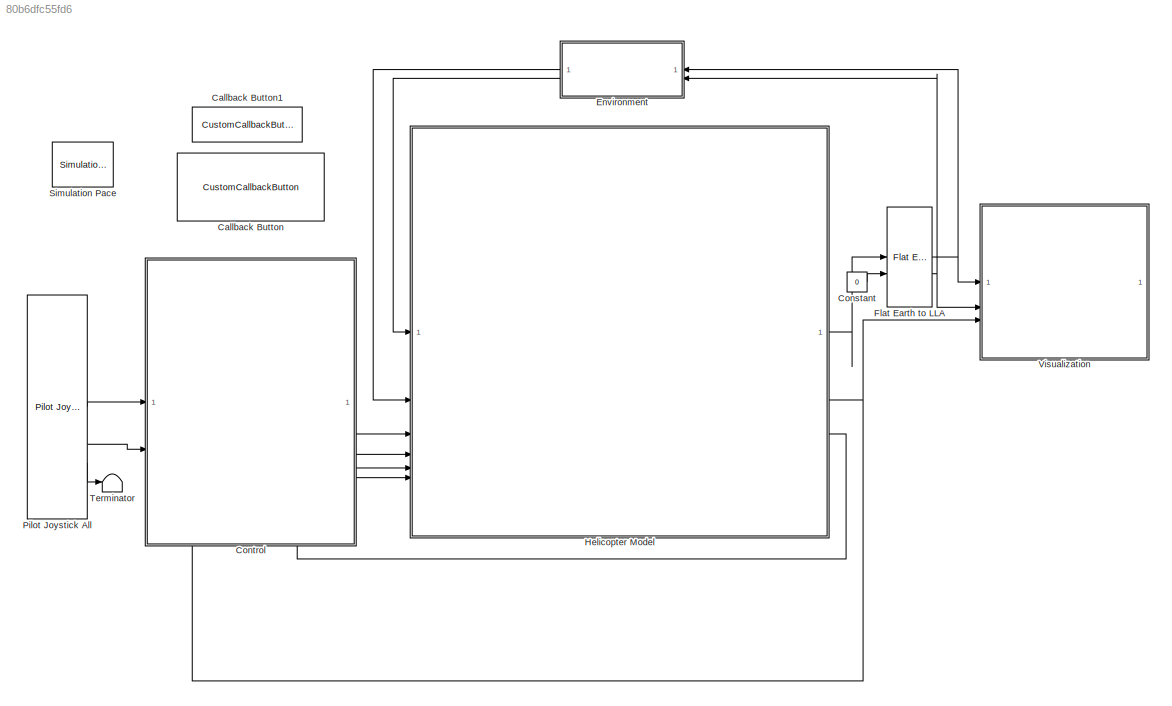
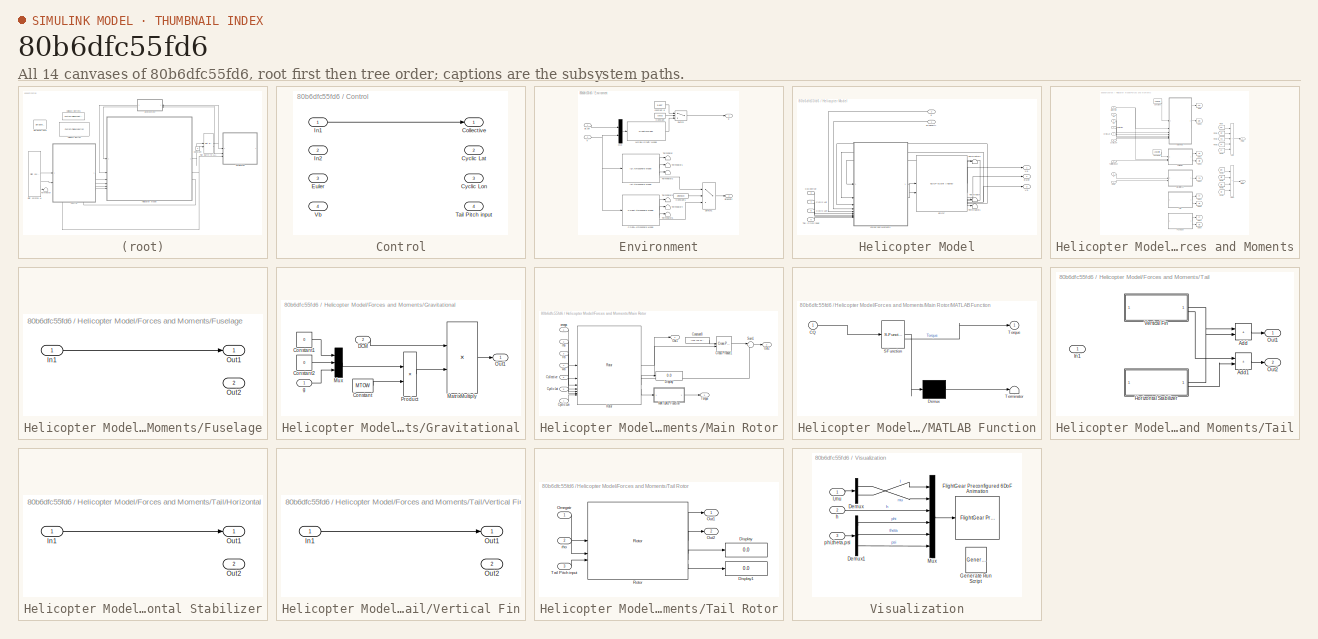
[diagram: thumbnail index - all 14 canvases of the model, root first then tree order]
MODEL slx_80b6dfc55fd6
KIND model
CONFIG AbsTol = auto
CONFIG EnableMultiTasking = off
CONFIG FixedStep = auto
CONFIG MaxStep = auto
CONFIG MinStep = auto
CONFIG RelTol = 1e-3
CONFIG SampleTimeConstraint = Unconstrained
CONFIG SolverName = VariableStepAuto
CONFIG StartTime = 0.0
CONFIG StopTime = 10.0
BLOCK [CustomCallbackButton] Callback Button
  Configuration = {"components":[{"name":"BackgroundImageComponent","settings":{"image":{"size":[0,0],"src":"default","srcOrientation":"Right"},"position":[0,0,1,1]}},{"name":"ButtonStateComponent","settings":{"buttonType":"momentary","clickFcn":"run(\"HelicopterParameterEstimation.mlapp\");","onValue":1,"position":[0,0,1,1],"pressDelay":"500","pressFcn":"","repeatInterval":"0","states":[{"horizontalAlignment":"cen...<+2128ch>
  CustomBackgroundColor = {"color":[0.9568627451,0.9568627451,0.9568627451],"show":true}
BLOCK [CustomCallbackButton] Callback Button1
  Configuration = {"components":[{"name":"BackgroundImageComponent","settings":{"image":{"size":[0,0],"src":"default","srcOrientation":"Right"},"position":[0,0,1,1]}},{"name":"ButtonStateComponent","settings":{"buttonType":"momentary","clickFcn":"clc; clear; close all;","onValue":1,"position":[0,0,1,1],"pressDelay":"500","pressFcn":"","repeatInterval":"0","states":[{"horizontalAlignment":"center","image":{"position...<+2029ch>
  CustomBackgroundColor = {"color":[0.9568627451,0.9568627451,0.9568627451],"show":true}
BLOCK [Constant] Constant
  Value = 0
BLOCK [SubSystem] Control
  PortSchema = {"entries":[{"content":{"sides":[{"content":{"connectorIds":["In1","In2"]},"type":"ConnectorPlacement.EquallySpacedRectSide","uuid":"528401e7-0fef-44be-ba63-acf96d247fb7"},{"content":{"connectorIds":["Out1","Out2","Out3","Out4"],"side":"RIGHT"},"type":"ConnectorPlacement.EquallySpacedRectSide","uuid":"314663aa-6cd9-4175-a49a-1575f8a7b87b"},{"content":{"side":"TOP"},"type":"ConnectorPlacement.Equal...<+404ch>
BLOCK [Outport] Control/Collective
BLOCK [Outport] Control/Cyclic Lat
  Port = 2
BLOCK [Outport] Control/Cyclic Lon
  Port = 3
BLOCK [Inport] Control/Euler
  Port = 3
BLOCK [Inport] Control/In1
BLOCK [Inport] Control/In2
  Port = 2
BLOCK [Outport] Control/Tail Pitch input
  Port = 4
BLOCK [Inport] Control/Vb
  Port = 4
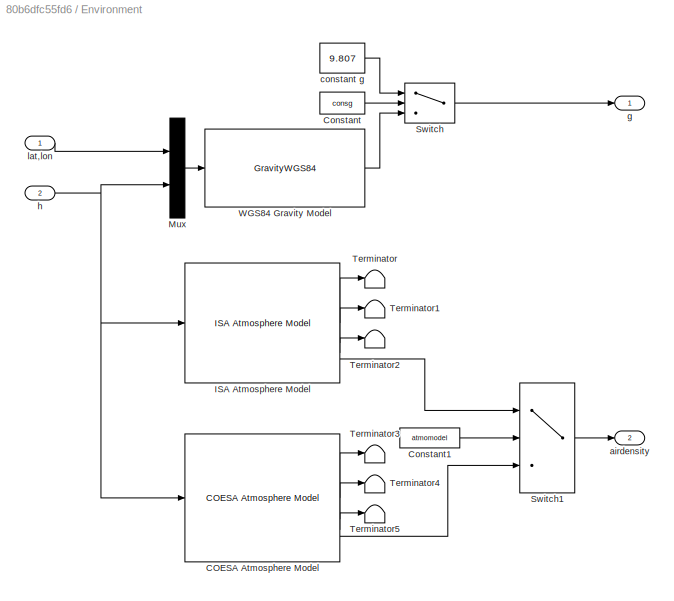
BLOCK [SubSystem] Environment
BLOCK [Reference] Environment/COESA Atmosphere Model  REF=aerolibatmos2/COESA Atmosphere Model
  SourceBlock = aerolibatmos2/COESA Atmosphere Model
  SourceType = Atmosphere Model
BLOCK [Constant] Environment/Constant
  Value = consg
BLOCK [Constant] Environment/Constant1
  Value = atmomodel
BLOCK [Reference] Environment/ISA Atmosphere Model  REF=aerolibatmos2/ISA Atmosphere Model
  SourceBlock = aerolibatmos2/ISA Atmosphere Model
  SourceType = International Standard Atmosphere Model
BLOCK [Mux] Environment/Mux
  DisplayOption = bar
  Inputs = 2
BLOCK [Switch] Environment/Switch
  Criteria = u2 ~= 0
  InputSameDT = off
  SaturateOnIntegerOverflow = off
BLOCK [Switch] Environment/Switch1
  Criteria = u2 ~= 0
  InputSameDT = off
  SaturateOnIntegerOverflow = off
BLOCK [Terminator] Environment/Terminator
BLOCK [Terminator] Environment/Terminator1
BLOCK [Terminator] Environment/Terminator2
BLOCK [Terminator] Environment/Terminator3
BLOCK [Terminator] Environment/Terminator4
BLOCK [Terminator] Environment/Terminator5
BLOCK [GravityWGS84] Environment/WGS84 Gravity Model  
BLOCK [Outport] Environment/airdensity
  Port = 2
BLOCK [Constant] Environment/constant g
  NameLocation = top
  Value = 9.807
BLOCK [Outport] Environment/g
BLOCK [Inport] Environment/h
  Port = 2
BLOCK [Inport] Environment/lat,lon
BLOCK [Reference] Flat Earth to LLA  REF=aerolibtransform2/Flat Earth to LLA
  SourceBlock = aerolibtransform2/Flat Earth to LLA
  SourceType = Flat Earth to LLA
BLOCK [SubSystem] Helicopter Model
BLOCK [Reference] Helicopter Model/6DOF  REF=shared6dof/6DOF (Euler Angles)
  LibrarySourceBlock = aerolib6dof2/6DOF (Euler Angles)
  SourceBlock = shared6dof/6DOF (Euler Angles)
  SourceType = 6DOF EoM (Body Axis)
BLOCK [Inport] Helicopter Model/Collective
  Port = 3
BLOCK [Inport] Helicopter Model/Cyclic Lat
  Port = 4
BLOCK [Inport] Helicopter Model/Cyclic Lon
  Port = 5
BLOCK [Outport] Helicopter Model/Euler
  Port = 2
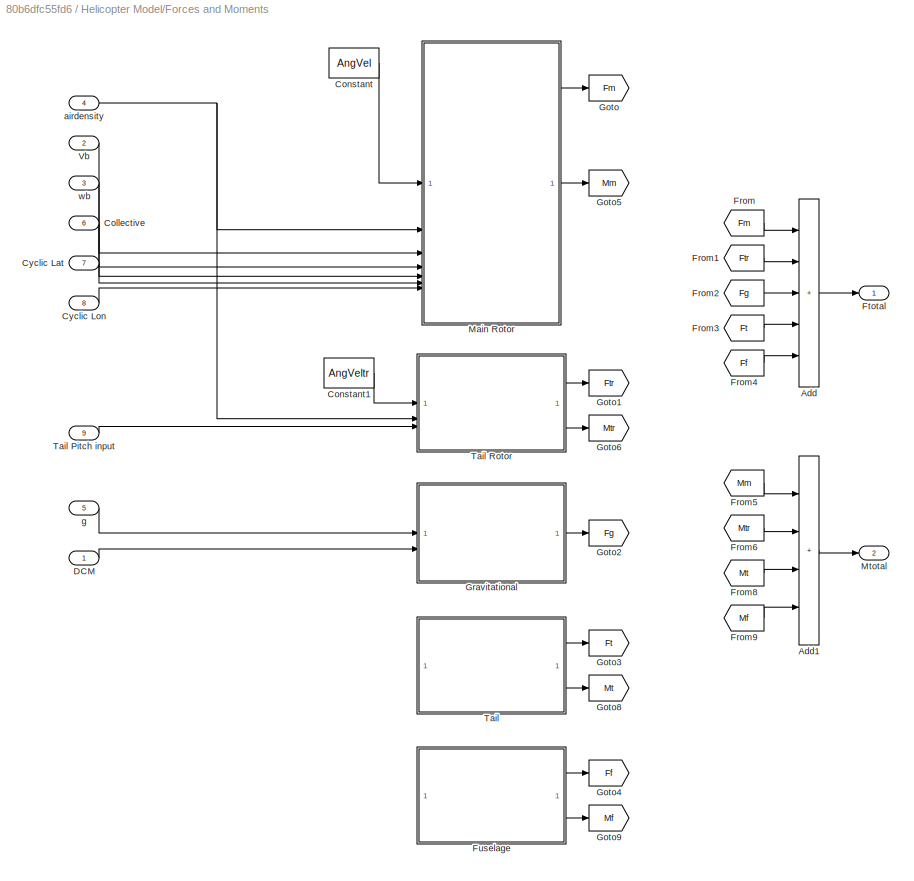
BLOCK [SubSystem] Helicopter Model/Forces and Moments
BLOCK [Sum] Helicopter Model/Forces and Moments/Add
  IconShape = rectangular
  Inputs = +++++
BLOCK [Sum] Helicopter Model/Forces and Moments/Add1
  IconShape = rectangular
  Inputs = ++++
BLOCK [Inport] Helicopter Model/Forces and Moments/Collective
  Port = 6
BLOCK [Constant] Helicopter Model/Forces and Moments/Constant
  Value = AngVel
BLOCK [Constant] Helicopter Model/Forces and Moments/Constant1
  Value = AngVeltr
BLOCK [Inport] Helicopter Model/Forces and Moments/Cyclic Lat
  Port = 7
BLOCK [Inport] Helicopter Model/Forces and Moments/Cyclic Lon
  Port = 8
BLOCK [Inport] Helicopter Model/Forces and Moments/DCM
BLOCK [From] Helicopter Model/Forces and Moments/From
  GotoTag = Fm
BLOCK [From] Helicopter Model/Forces and Moments/From1
  GotoTag = Ftr
BLOCK [From] Helicopter Model/Forces and Moments/From2
  GotoTag = Fg
BLOCK [From] Helicopter Model/Forces and Moments/From3
  GotoTag = Ft
BLOCK [From] Helicopter Model/Forces and Moments/From4
  GotoTag = Ff
BLOCK [From] Helicopter Model/Forces and Moments/From5
  GotoTag = Mm
BLOCK [From] Helicopter Model/Forces and Moments/From6
  GotoTag = Mtr
BLOCK [From] Helicopter Model/Forces and Moments/From8
  GotoTag = Mt
BLOCK [From] Helicopter Model/Forces and Moments/From9
  GotoTag = Mf
BLOCK [Outport] Helicopter Model/Forces and Moments/Ftotal
BLOCK [SubSystem] Helicopter Model/Forces and Moments/Fuselage
BLOCK [Inport] Helicopter Model/Forces and Moments/Fuselage/In1
BLOCK [Outport] Helicopter Model/Forces and Moments/Fuselage/Out1
BLOCK [Outport] Helicopter Model/Forces and Moments/Fuselage/Out2
  Port = 2
BLOCK [Goto] Helicopter Model/Forces and Moments/Goto
  GotoTag = Fm
BLOCK [Goto] Helicopter Model/Forces and Moments/Goto1
  GotoTag = Ftr
BLOCK [Goto] Helicopter Model/Forces and Moments/Goto2
  GotoTag = Fg
BLOCK [Goto] Helicopter Model/Forces and Moments/Goto3
  GotoTag = Ft
BLOCK [Goto] Helicopter Model/Forces and Moments/Goto4
  GotoTag = Ff
BLOCK [Goto] Helicopter Model/Forces and Moments/Goto5
  GotoTag = Mm
BLOCK [Goto] Helicopter Model/Forces and Moments/Goto6
  GotoTag = Mtr
BLOCK [Goto] Helicopter Model/Forces and Moments/Goto8
  GotoTag = Mt
BLOCK [Goto] Helicopter Model/Forces and Moments/Goto9
  GotoTag = Mf
BLOCK [SubSystem] Helicopter Model/Forces and Moments/Gravitational
BLOCK [Constant] Helicopter Model/Forces and Moments/Gravitational/Constant
  Value = MTOW
BLOCK [Constant] Helicopter Model/Forces and Moments/Gravitational/Constant1
  Value = 0
BLOCK [Constant] Helicopter Model/Forces and Moments/Gravitational/Constant2
  Value = 0
BLOCK [Inport] Helicopter Model/Forces and Moments/Gravitational/DCM
  Port = 2
BLOCK [Product] Helicopter Model/Forces and Moments/Gravitational/MatrixMultiply
  Multiplication = Matrix(*)
BLOCK [Mux] Helicopter Model/Forces and Moments/Gravitational/Mux
  DisplayOption = bar
  Inputs = 3
BLOCK [Outport] Helicopter Model/Forces and Moments/Gravitational/Out1
BLOCK [Product] Helicopter Model/Forces and Moments/Gravitational/Product
BLOCK [Inport] Helicopter Model/Forces and Moments/Gravitational/g
BLOCK [SubSystem] Helicopter Model/Forces and Moments/Main Rotor
BLOCK [Inport] Helicopter Model/Forces and Moments/Main Rotor/Collective
  Port = 5
BLOCK [Constant] Helicopter Model/Forces and Moments/Main Rotor/Constant8
  Value = [Xcg Ycg Zcg]
BLOCK [Reference] Helicopter Model/Forces and Moments/Main Rotor/Cross Product1  REF=matrix_library/Cross Product
  LibrarySourceBlock = simulink/Matrix\nOperations/Cross Product
  SourceBlock = matrix_library/Cross Product
  SourceType = CrossProduct
BLOCK [Inport] Helicopter Model/Forces and Moments/Main Rotor/Cyclic Lat
  Port = 6
BLOCK [Inport] Helicopter Model/Forces and Moments/Main Rotor/Cyclic Lon
  Port = 7
BLOCK [Display] Helicopter Model/Forces and Moments/Main Rotor/Display
  Decimation = 1
BLOCK [SubSystem] Helicopter Model/Forces and Moments/Main Rotor/MATLAB Function
  ErrorFcn = Stateflow.Translate.translate
  PermitHierarchicalResolution = ExplicitOnly
  SFBlockType = MATLAB Function
  TreatAsAtomicUnit = on
BLOCK [Demux] Helicopter Model/Forces and Moments/Main Rotor/MATLAB Function/ Demux 
  Outputs = 1
BLOCK [S-Function] Helicopter Model/Forces and Moments/Main Rotor/MATLAB Function/ SFunction 
  EnableBusSupport = off
  FunctionName = sf_sfun
  PortCounts = [1 2]
  SFcnIsStateOwnerBlock = off
  SFunctionDeploymentMode = off
  Tag = Stateflow S-Function 2
BLOCK [Terminator] Helicopter Model/Forces and Moments/Main Rotor/MATLAB Function/ Terminator 
BLOCK [Inport] Helicopter Model/Forces and Moments/Main Rotor/MATLAB Function/CQ
BLOCK [Outport] Helicopter Model/Forces and Moments/Main Rotor/MATLAB Function/Torque
BLOCK [Outport] Helicopter Model/Forces and Moments/Main Rotor/Out1
BLOCK [Outport] Helicopter Model/Forces and Moments/Main Rotor/Out2
  Port = 2
BLOCK [Rotor] Helicopter Model/Forces and Moments/Main Rotor/Rotor
  CTCQMode = Compute using BEMT
  CTout = on
  Nb = Nb
  chord = chord
  controlInput = on
  modelMode = With flap effects
  radius = R
  thetaTip = R_twist
  twistType = Ideal
BLOCK [Sum] Helicopter Model/Forces and Moments/Main Rotor/Sum1
  Inputs = |++
BLOCK [Outport] Helicopter Model/Forces and Moments/Main Rotor/Torque
  Port = 3
BLOCK [Inport] Helicopter Model/Forces and Moments/Main Rotor/Vb
  Port = 3
BLOCK [Inport] Helicopter Model/Forces and Moments/Main Rotor/omega
BLOCK [Inport] Helicopter Model/Forces and Moments/Main Rotor/rho
  Port = 2
BLOCK [Inport] Helicopter Model/Forces and Moments/Main Rotor/wb
  Port = 4
BLOCK [Outport] Helicopter Model/Forces and Moments/Mtotal
  Port = 2
BLOCK [SubSystem] Helicopter Model/Forces and Moments/Tail
BLOCK [Inport] Helicopter Model/Forces and Moments/Tail Pitch input
  Port = 9
BLOCK [SubSystem] Helicopter Model/Forces and Moments/Tail Rotor
BLOCK [Display] Helicopter Model/Forces and Moments/Tail Rotor/Display
  Decimation = 1
BLOCK [Display] Helicopter Model/Forces and Moments/Tail Rotor/Display1
  Decimation = 1
BLOCK [Inport] Helicopter Model/Forces and Moments/Tail Rotor/Omegatr
BLOCK [Outport] Helicopter Model/Forces and Moments/Tail Rotor/Out1
BLOCK [Outport] Helicopter Model/Forces and Moments/Tail Rotor/Out2
  Port = 2
BLOCK [Rotor] Helicopter Model/Forces and Moments/Tail Rotor/Rotor
  CTCQMode = Compute using BEMT
  CTout = on
  Nb = Nbtr
  controlInput = on
  radius = Rtr
BLOCK [Inport] Helicopter Model/Forces and Moments/Tail Rotor/Tail Pitch input
  Port = 3
BLOCK [Inport] Helicopter Model/Forces and Moments/Tail Rotor/rho
  Port = 2
BLOCK [Sum] Helicopter Model/Forces and Moments/Tail/Add
  IconShape = rectangular
BLOCK [Sum] Helicopter Model/Forces and Moments/Tail/Add1
  IconShape = rectangular
BLOCK [SubSystem] Helicopter Model/Forces and Moments/Tail/Horizontal Stabilizer
BLOCK [Inport] Helicopter Model/Forces and Moments/Tail/Horizontal Stabilizer/In1
BLOCK [Outport] Helicopter Model/Forces and Moments/Tail/Horizontal Stabilizer/Out1
BLOCK [Outport] Helicopter Model/Forces and Moments/Tail/Horizontal Stabilizer/Out2
  Port = 2
BLOCK [Inport] Helicopter Model/Forces and Moments/Tail/In1
BLOCK [Outport] Helicopter Model/Forces and Moments/Tail/Out1
BLOCK [Outport] Helicopter Model/Forces and Moments/Tail/Out2
  Port = 2
BLOCK [SubSystem] Helicopter Model/Forces and Moments/Tail/Vertical Fin
BLOCK [Inport] Helicopter Model/Forces and Moments/Tail/Vertical Fin/In1
BLOCK [Outport] Helicopter Model/Forces and Moments/Tail/Vertical Fin/Out1
BLOCK [Outport] Helicopter Model/Forces and Moments/Tail/Vertical Fin/Out2
  Port = 2
BLOCK [Inport] Helicopter Model/Forces and Moments/Vb
  Port = 2
BLOCK [Inport] Helicopter Model/Forces and Moments/airdensity
  Port = 4
BLOCK [Inport] Helicopter Model/Forces and Moments/g
  Port = 5
BLOCK [Inport] Helicopter Model/Forces and Moments/wb
  Port = 3
BLOCK [Inport] Helicopter Model/Tail Pitch input
  Port = 6
BLOCK [Terminator] Helicopter Model/Terminator
BLOCK [Terminator] Helicopter Model/Terminator1
BLOCK [Terminator] Helicopter Model/Terminator2
BLOCK [Outport] Helicopter Model/Vb
  Port = 3
BLOCK [Outport] Helicopter Model/Xe
BLOCK [Inport] Helicopter Model/airdensity
BLOCK [Inport] Helicopter Model/g
  Port = 2
BLOCK [Reference] Pilot Joystick All  REF=aerolibanimutils/Pilot Joystick
  LibrarySourceBlock = aerolibanimutils/Pilot Joystick All
  SourceBlock = aerolibanimutils/Pilot Joystick
  SourceType = PilotJoystick
BLOCK [Reference] Simulation Pace  REF=aerolibanimutils/Simulation Pace
  AttributesFormatString = %<SleepMode>\n%<SimulationPace> sec/sec
  SourceBlock = aerolibanimutils/Simulation Pace
  SourceType = Simulation Pace
BLOCK [Terminator] Terminator
BLOCK [SubSystem] Visualization
BLOCK [Demux] Visualization/Demux
  Outputs = 2
BLOCK [Demux] Visualization/Demux1
  Outputs = 3
BLOCK [Reference] Visualization/FlightGear Preconfigured 6DoF Animation   REF=aerolibfltsims/FlightGear
Preconfigured
6DoF Animation
  NameLocation = top
  SourceBlock = aerolibfltsims/FlightGear\nPreconfigured\n6DoF Animation
  SourceType = FlightGearQuick6DoFAnimation
BLOCK [Reference] Visualization/Generate Run Script   REF=aerolibfltsims/Generate
Run Script
  SourceBlock = aerolibfltsims/Generate\nRun Script
  SourceType = Generate FlightGear Run Script
BLOCK [Mux] Visualization/Mux
  DisplayOption = bar
  Inputs = 6
BLOCK [Inport] Visualization/h
  Port = 2
BLOCK [Inport] Visualization/l,mu
BLOCK [Inport] Visualization/phi,theta,psi
  Port = 3
LINE Constant:1 -> Flat Earth to LLA:2
LINE Control/In1:1 -> Control/Collective:1
LINE Control:1 -> Helicopter Model:3
LINE Control:2 -> Helicopter Model:4
LINE Control:3 -> Helicopter Model:5
LINE Control:4 -> Helicopter Model:6
LINE Environment/COESA Atmosphere Model:1 -> Environment/Terminator3:1
LINE Environment/COESA Atmosphere Model:2 -> Environment/Terminator4:1
LINE Environment/COESA Atmosphere Model:3 -> Environment/Terminator5:1
LINE Environment/COESA Atmosphere Model:4 -> Environment/Switch1:3
LINE Environment/Constant1:1 -> Environment/Switch1:2
LINE Environment/Constant:1 -> Environment/Switch:2
LINE Environment/ISA Atmosphere Model:1 -> Environment/Terminator:1
LINE Environment/ISA Atmosphere Model:2 -> Environment/Terminator1:1
LINE Environment/ISA Atmosphere Model:3 -> Environment/Terminator2:1
LINE Environment/ISA Atmosphere Model:4 -> Environment/Switch1:1
LINE Environment/Mux:1 -> Environment/WGS84 Gravity Model  :1
LINE Environment/Switch1:1 -> Environment/airdensity:1
LINE Environment/Switch:1 -> Environment/g:1
LINE Environment/WGS84 Gravity Model  :1 -> Environment/Switch:3
LINE Environment/constant g:1 -> Environment/Switch:1
NET Environment/h:1 -> Environment/COESA Atmosphere Model:1, Environment/ISA Atmosphere Model:1, Environment/Mux:2
LINE Environment/lat,lon:1 -> Environment/Mux:1
LINE Environment:1 -> Helicopter Model:2
LINE Environment:2 -> Helicopter Model:1
NET Flat Earth to LLA:1 -> Environment:1, Visualization:1
NET Flat Earth to LLA:2 -> Environment:2, Visualization:2
LINE Helicopter Model/6DOF:1 -> Helicopter Model/Terminator2:1
LINE Helicopter Model/6DOF:2 -> Helicopter Model/Xe:1
LINE Helicopter Model/6DOF:3 -> Helicopter Model/Euler:1
LINE Helicopter Model/6DOF:4 -> Helicopter Model/Forces and Moments:1
NET Helicopter Model/6DOF:5 -> Helicopter Model/Forces and Moments:2, Helicopter Model/Vb:1
LINE Helicopter Model/6DOF:6 -> Helicopter Model/Forces and Moments:3
LINE Helicopter Model/6DOF:7 -> Helicopter Model/Terminator:1
LINE Helicopter Model/6DOF:8 -> Helicopter Model/Terminator1:1
LINE Helicopter Model/Collective:1 -> Helicopter Model/Forces and Moments:6
LINE Helicopter Model/Cyclic Lat:1 -> Helicopter Model/Forces and Moments:7
LINE Helicopter Model/Cyclic Lon:1 -> Helicopter Model/Forces and Moments:8
LINE Helicopter Model/Forces and Moments/Add1:1 -> Helicopter Model/Forces and Moments/Mtotal:1
LINE Helicopter Model/Forces and Moments/Add:1 -> Helicopter Model/Forces and Moments/Ftotal:1
LINE Helicopter Model/Forces and Moments/Collective:1 -> Helicopter Model/Forces and Moments/Main Rotor:5
LINE Helicopter Model/Forces and Moments/Constant1:1 -> Helicopter Model/Forces and Moments/Tail Rotor:1
LINE Helicopter Model/Forces and Moments/Constant:1 -> Helicopter Model/Forces and Moments/Main Rotor:1
LINE Helicopter Model/Forces and Moments/Cyclic Lat:1 -> Helicopter Model/Forces and Moments/Main Rotor:6
LINE Helicopter Model/Forces and Moments/Cyclic Lon:1 -> Helicopter Model/Forces and Moments/Main Rotor:7
LINE Helicopter Model/Forces and Moments/DCM:1 -> Helicopter Model/Forces and Moments/Gravitational:2
LINE Helicopter Model/Forces and Moments/From1:1 -> Helicopter Model/Forces and Moments/Add:2
LINE Helicopter Model/Forces and Moments/From2:1 -> Helicopter Model/Forces and Moments/Add:3
LINE Helicopter Model/Forces and Moments/From3:1 -> Helicopter Model/Forces and Moments/Add:4
LINE Helicopter Model/Forces and Moments/From4:1 -> Helicopter Model/Forces and Moments/Add:5
LINE Helicopter Model/Forces and Moments/From5:1 -> Helicopter Model/Forces and Moments/Add1:1
LINE Helicopter Model/Forces and Moments/From6:1 -> Helicopter Model/Forces and Moments/Add1:2
LINE Helicopter Model/Forces and Moments/From8:1 -> Helicopter Model/Forces and Moments/Add1:3
LINE Helicopter Model/Forces and Moments/From9:1 -> Helicopter Model/Forces and Moments/Add1:4
LINE Helicopter Model/Forces and Moments/From:1 -> Helicopter Model/Forces and Moments/Add:1
LINE Helicopter Model/Forces and Moments/Fuselage/In1:1 -> Helicopter Model/Forces and Moments/Fuselage/Out1:1
LINE Helicopter Model/Forces and Moments/Fuselage:1 -> Helicopter Model/Forces and Moments/Goto4:1
LINE Helicopter Model/Forces and Moments/Fuselage:2 -> Helicopter Model/Forces and Moments/Goto9:1
LINE Helicopter Model/Forces and Moments/Gravitational/Constant1:1 -> Helicopter Model/Forces and Moments/Gravitational/Mux:1
LINE Helicopter Model/Forces and Moments/Gravitational/Constant2:1 -> Helicopter Model/Forces and Moments/Gravitational/Mux:2
LINE Helicopter Model/Forces and Moments/Gravitational/Constant:1 -> Helicopter Model/Forces and Moments/Gravitational/Product:2
LINE Helicopter Model/Forces and Moments/Gravitational/DCM:1 -> Helicopter Model/Forces and Moments/Gravitational/MatrixMultiply:1
LINE Helicopter Model/Forces and Moments/Gravitational/MatrixMultiply:1 -> Helicopter Model/Forces and Moments/Gravitational/Out1:1
LINE Helicopter Model/Forces and Moments/Gravitational/Mux:1 -> Helicopter Model/Forces and Moments/Gravitational/Product:1
LINE Helicopter Model/Forces and Moments/Gravitational/Product:1 -> Helicopter Model/Forces and Moments/Gravitational/MatrixMultiply:2
LINE Helicopter Model/Forces and Moments/Gravitational/g:1 -> Helicopter Model/Forces and Moments/Gravitational/Mux:3
LINE Helicopter Model/Forces and Moments/Gravitational:1 -> Helicopter Model/Forces and Moments/Goto2:1
LINE Helicopter Model/Forces and Moments/Main Rotor/Collective:1 -> Helicopter Model/Forces and Moments/Main Rotor/Rotor:5
LINE Helicopter Model/Forces and Moments/Main Rotor/Constant8:1 -> Helicopter Model/Forces and Moments/Main Rotor/Cross Product1:1
LINE Helicopter Model/Forces and Moments/Main Rotor/Cross Product1:1 -> Helicopter Model/Forces and Moments/Main Rotor/Sum1:1
LINE Helicopter Model/Forces and Moments/Main Rotor/Cyclic Lat:1 -> Helicopter Model/Forces and Moments/Main Rotor/Rotor:6
LINE Helicopter Model/Forces and Moments/Main Rotor/Cyclic Lon:1 -> Helicopter Model/Forces and Moments/Main Rotor/Rotor:7
LINE Helicopter Model/Forces and Moments/Main Rotor/MATLAB Function:1 -> Helicopter Model/Forces and Moments/Main Rotor/Torque:1
NET Helicopter Model/Forces and Moments/Main Rotor/Rotor:1 -> Helicopter Model/Forces and Moments/Main Rotor/Cross Product1:2, Helicopter Model/Forces and Moments/Main Rotor/Out1:1
LINE Helicopter Model/Forces and Moments/Main Rotor/Rotor:2 -> Helicopter Model/Forces and Moments/Main Rotor/Sum1:2
LINE Helicopter Model/Forces and Moments/Main Rotor/Rotor:3 -> Helicopter Model/Forces and Moments/Main Rotor/Display:1
LINE Helicopter Model/Forces and Moments/Main Rotor/Rotor:4 -> Helicopter Model/Forces and Moments/Main Rotor/MATLAB Function:1
LINE Helicopter Model/Forces and Moments/Main Rotor/Sum1:1 -> Helicopter Model/Forces and Moments/Main Rotor/Out2:1
LINE Helicopter Model/Forces and Moments/Main Rotor/Vb:1 -> Helicopter Model/Forces and Moments/Main Rotor/Rotor:3
LINE Helicopter Model/Forces and Moments/Main Rotor/omega:1 -> Helicopter Model/Forces and Moments/Main Rotor/Rotor:1
LINE Helicopter Model/Forces and Moments/Main Rotor/rho:1 -> Helicopter Model/Forces and Moments/Main Rotor/Rotor:2
LINE Helicopter Model/Forces and Moments/Main Rotor/wb:1 -> Helicopter Model/Forces and Moments/Main Rotor/Rotor:4
LINE Helicopter Model/Forces and Moments/Main Rotor:1 -> Helicopter Model/Forces and Moments/Goto:1
LINE Helicopter Model/Forces and Moments/Main Rotor:2 -> Helicopter Model/Forces and Moments/Goto5:1
LINE Helicopter Model/Forces and Moments/Tail Pitch input:1 -> Helicopter Model/Forces and Moments/Tail Rotor:3
LINE Helicopter Model/Forces and Moments/Tail Rotor/Omegatr:1 -> Helicopter Model/Forces and Moments/Tail Rotor/Rotor:1
LINE Helicopter Model/Forces and Moments/Tail Rotor/Rotor:1 -> Helicopter Model/Forces and Moments/Tail Rotor/Out1:1
LINE Helicopter Model/Forces and Moments/Tail Rotor/Rotor:2 -> Helicopter Model/Forces and Moments/Tail Rotor/Out2:1
LINE Helicopter Model/Forces and Moments/Tail Rotor/Rotor:3 -> Helicopter Model/Forces and Moments/Tail Rotor/Display:1
LINE Helicopter Model/Forces and Moments/Tail Rotor/Rotor:4 -> Helicopter Model/Forces and Moments/Tail Rotor/Display1:1
LINE Helicopter Model/Forces and Moments/Tail Rotor/Tail Pitch input:1 -> Helicopter Model/Forces and Moments/Tail Rotor/Rotor:3
LINE Helicopter Model/Forces and Moments/Tail Rotor/rho:1 -> Helicopter Model/Forces and Moments/Tail Rotor/Rotor:2
LINE Helicopter Model/Forces and Moments/Tail Rotor:1 -> Helicopter Model/Forces and Moments/Goto1:1
LINE Helicopter Model/Forces and Moments/Tail Rotor:2 -> Helicopter Model/Forces and Moments/Goto6:1
LINE Helicopter Model/Forces and Moments/Tail/Add1:1 -> Helicopter Model/Forces and Moments/Tail/Out2:1
LINE Helicopter Model/Forces and Moments/Tail/Add:1 -> Helicopter Model/Forces and Moments/Tail/Out1:1
LINE Helicopter Model/Forces and Moments/Tail/Horizontal Stabilizer/In1:1 -> Helicopter Model/Forces and Moments/Tail/Horizontal Stabilizer/Out1:1
LINE Helicopter Model/Forces and Moments/Tail/Horizontal Stabilizer:1 -> Helicopter Model/Forces and Moments/Tail/Add:2
LINE Helicopter Model/Forces and Moments/Tail/Horizontal Stabilizer:2 -> Helicopter Model/Forces and Moments/Tail/Add1:2
LINE Helicopter Model/Forces and Moments/Tail/Vertical Fin/In1:1 -> Helicopter Model/Forces and Moments/Tail/Vertical Fin/Out1:1
LINE Helicopter Model/Forces and Moments/Tail/Vertical Fin:1 -> Helicopter Model/Forces and Moments/Tail/Add:1
LINE Helicopter Model/Forces and Moments/Tail/Vertical Fin:2 -> Helicopter Model/Forces and Moments/Tail/Add1:1
LINE Helicopter Model/Forces and Moments/Tail:1 -> Helicopter Model/Forces and Moments/Goto3:1
LINE Helicopter Model/Forces and Moments/Tail:2 -> Helicopter Model/Forces and Moments/Goto8:1
LINE Helicopter Model/Forces and Moments/Vb:1 -> Helicopter Model/Forces and Moments/Main Rotor:3
NET Helicopter Model/Forces and Moments/airdensity:1 -> Helicopter Model/Forces and Moments/Main Rotor:2, Helicopter Model/Forces and Moments/Tail Rotor:2
LINE Helicopter Model/Forces and Moments/g:1 -> Helicopter Model/Forces and Moments/Gravitational:1
LINE Helicopter Model/Forces and Moments/wb:1 -> Helicopter Model/Forces and Moments/Main Rotor:4
LINE Helicopter Model/Forces and Moments:1 -> Helicopter Model/6DOF:1
LINE Helicopter Model/Forces and Moments:2 -> Helicopter Model/6DOF:2
LINE Helicopter Model/Tail Pitch input:1 -> Helicopter Model/Forces and Moments:9
LINE Helicopter Model/airdensity:1 -> Helicopter Model/Forces and Moments:4
LINE Helicopter Model/g:1 -> Helicopter Model/Forces and Moments:5
LINE Helicopter Model:1 -> Flat Earth to LLA:1
NET Helicopter Model:2 -> Control:3, Visualization:3
LINE Helicopter Model:3 -> Control:4
LINE Pilot Joystick All:1 -> Control:1
LINE Pilot Joystick All:2 -> Control:2
LINE Pilot Joystick All:3 -> Terminator:1
LINE Visualization/Demux1:1 -> Visualization/Mux:4
LINE Visualization/Demux1:2 -> Visualization/Mux:5
LINE Visualization/Demux1:3 -> Visualization/Mux:6
LINE Visualization/Demux:1 -> Visualization/Mux:2
LINE Visualization/Demux:2 -> Visualization/Mux:1
LINE Visualization/Mux:1 -> Visualization/FlightGear Preconfigured 6DoF Animation :1
LINE Visualization/h:1 -> Visualization/Mux:3
LINE Visualization/l,mu:1 -> Visualization/Demux:1
LINE Visualization/phi,theta,psi:1 -> Visualization/Demux1:1
note: NET lines group one-source signal fan-out (src -> all destinations, sorted); 1:1 wires keep LINE
CHART Helicopter Model/Forces and Moments/Main Rotor/MATLAB Function states=1 transitions=1
  STATE_LABEL 'eML_blk_kernel()'
  STATE_LABEL 'SCRIPT:\nfunction Torque = Torque(CQ)\n\nTorque = rho*A*R*(Omega*R)^2*Cq;\n'
CHART  states=0 transitions=0
